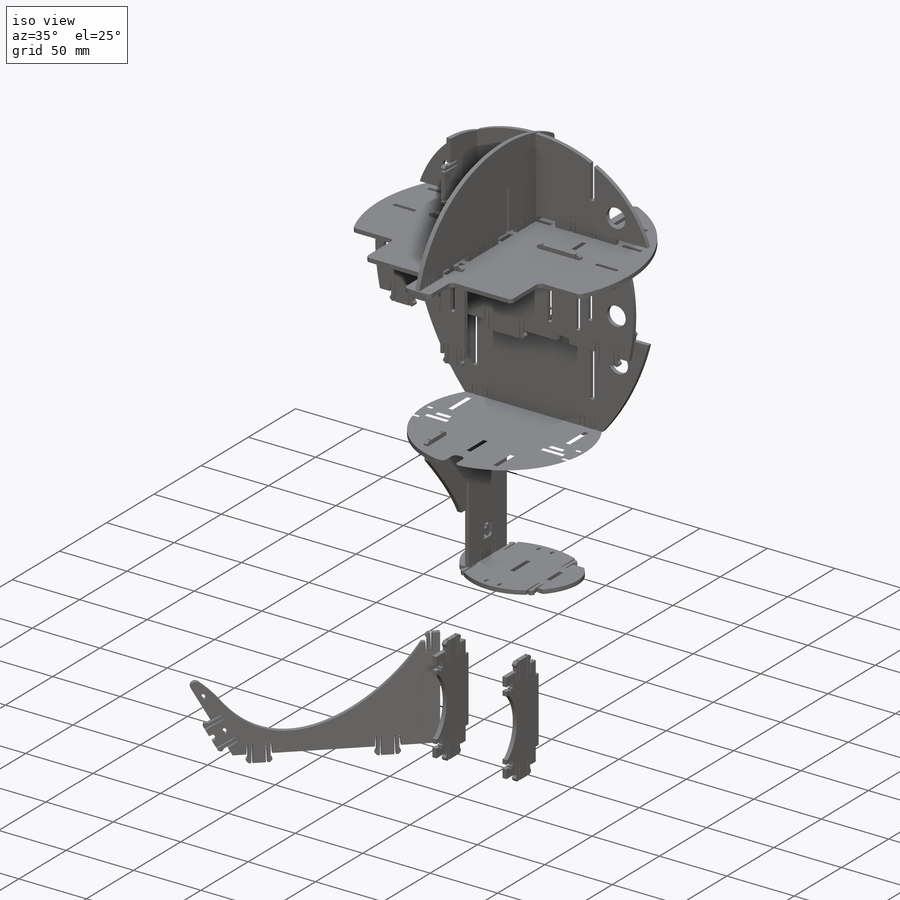
[diagram: iso view]
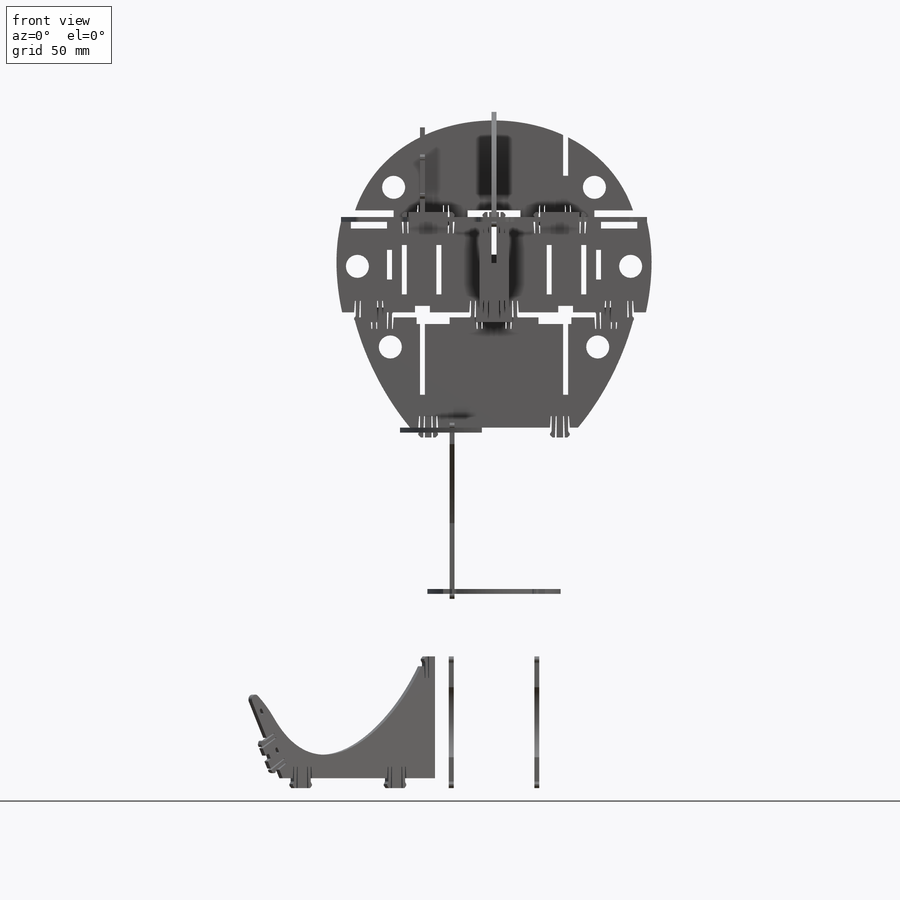
[diagram: front view]
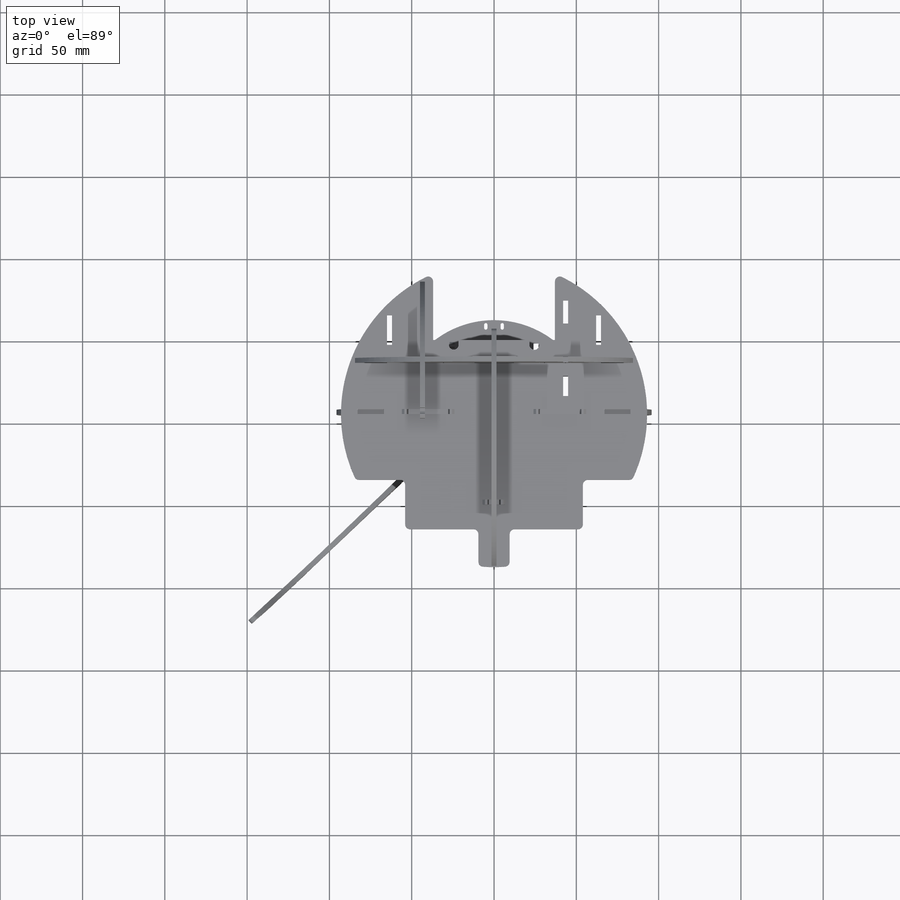
[diagram: top view]
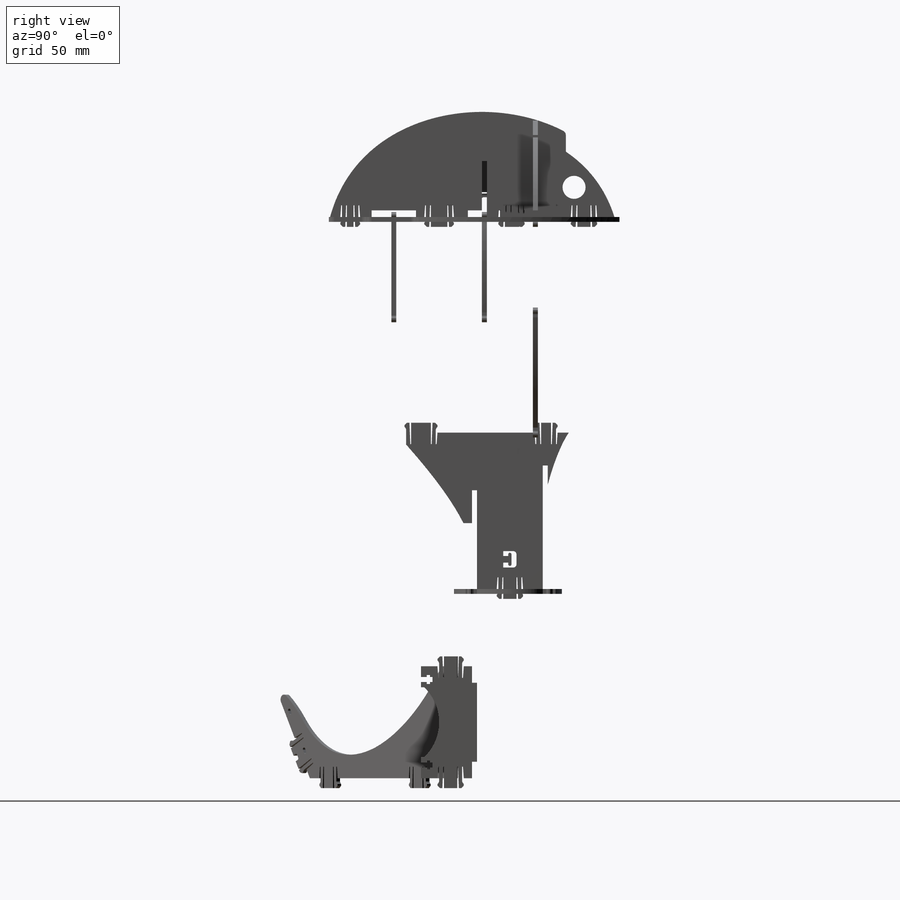
[diagram: right view]
SOLIDWORKS PART (.sldprt)
format: sldprt  version: not decoded by parser v0  size: 11,073,536 bytes
history: native  units: mm
features: sketch x41, extrude x28, plane x26, mirror x20, cut_extrude x13, fillet x12, material x1, move_body x1 (+12 scaffold rows collapsed)
feature tree (154):
  scaffold x12  (default folders/planes/origin — collapsed)
  material  "Material <not specified>"
  move_body  "Body-Move/Copy1"
  plane  "Plane1"  Offset=20mm
  sketch  "Sketch1"  dims[c1.D1=13.0mm c1.D2=0.5mm c1.D3=1.0mm c1.D4=0.5mm c1.D5=1.0mm c1.D6=2.5mm c1.D7=1.5mm c1.D8=1.5mm c1.D9=1.5mm c1.D10=1.0mm c1.D11=0.5mm c1.D12=1.0mm c1.D13=7.0mm c2.D1=3.0mm c2.D2=3.0mm c2.D3=3.0mm c2.D4=14.0mm c2.D5=14.0mm c2.D6=65.0mm c2.D7=30.0mm c2.D8=3.0mm c2.D9=14.0mm c2.D10=7.0mm c2.D11=37.0mm c2.D12=3.0mm c2.D13=45.0mm c2.D14=14.0mm c2.D15=7.0mm c2.D16=25.0mm c2.D17=3.0mm c3.D15=30.0mm c3.D13=40.0mm c3.D16=26.0mm c3.D18=3.0mm c3.D19=14.0mm c3.D20=6.0mm c3.D21=51.0mm c3.D22=12.0mm c3.D23=12.0mm c3.D24=31.0mm c3.D25=4.0mm c4.D15=51.0mm c4.D21=30.0mm c4.D24=27.0mm c4.D25=10.0mm c5.D15=38.0mm c5.D21=51.0mm c5.D25=20.0mm]
  extrude  "Boss-Extrude1"  Depth=3mm
  mirror  "Mirror1"
  sketch  "Sketch49"  dims[D1=10.0mm D2=10.0mm D3=10.0mm D4=32.0mm]
  cut_extrude  "Cut-Extrude12"  [1 undecoded]
  plane  "Plane2"  Offset=0mm
  plane  "Plane4"
  sketch  "Sketch2"  dims[c1.D1=8.0mm c1.D2=13.0mm c1.D3=0.5mm c1.D4=1.0mm c1.D5=0.5mm c1.D6=1.0mm c1.D7=2.5mm c1.D8=1.5mm c1.D9=1.5mm c1.D10=1.5mm c1.D11=1.0mm c1.D12=0.5mm c1.D13=1.0mm c1.D14=7.0mm c2.D1=13.0mm c2.D2=0.5mm c2.D3=1.0mm c2.D4=1.5mm c2.D5=1.5mm c2.D6=0.5mm c2.D7=1.0mm c2.D8=7.0mm c2.D9=1.0mm c2.D10=0.5mm c2.D11=1.0mm c2.D12=1.5mm c2.D13=2.5mm c3.D4=3.0mm c3.D10=1.0mm c3.D1=3.0mm c3.D2=6.0mm c3.D3=20.0mm c3.D5=25.0mm c3.D6=90.0mm c3.D7=1.0mm c4.D6=68.0mm c4.D8=8.0mm c5.D6=68.0mm c5.D1=3.0mm c5.D9=2.0mm c5.D10=4.0mm c5.D11=4.0mm c5.D12=26.0mm]
  extrude  "Boss-Extrude2"  Depth=3mm
  sketch  "Sketch46"  dims[D2=1.0mm D1=3.0mm]
  cut_extrude  "Cut-Extrude9"  Depth=3mm
  mirror  "Mirror2"
  plane  "Plane5"  Offset=0mm
  sketch  "Sketch4"  dims[c1.D2=1.0mm c1.D1=2.0mm c2.D2=4.0mm c2.D3=2.0mm]
  extrude  "Boss-Extrude3"  Depth=3mm
  plane  "Plane6"  Offset=112mm
  sketch  "Sketch5"  dims[c1.D9=1.0mm c1.D1=25.0mm c1.D2=24.0mm c1.D3=1.5mm c1.D4=8.0mm c1.D5=18.0mm c1.D6=3.0mm c1.D7=14.0mm c1.D8=24.0mm c2.D9=14.0mm c2.D1=1.5mm c2.D2=20.0mm c2.D3=24.0mm c2.D10=26.0mm c3.D2=2.0mm c3.D9=4.0mm c3.D11=4.0mm c3.D12=5.5mm c3.D13=7.0mm]
  extrude  "Boss-Extrude4"  Depth=3mm
  mirror  "Mirror3"
  plane  "Plane7"  Offset=0mm
  sketch  "Sketch6"  dims[c1.D16=1.0mm c1.D1=1.0mm c1.D2=95.0mm c1.D3=10.0mm c1.D4=48.0mm c1.D5=10.0mm c1.D6=48.0mm c1.D7=68.0mm c1.D8=3.0mm c1.D9=15.0mm c2.D5=10.0mm c2.D2=95.0mm c2.D10=1.5mm c2.D11=50.0mm c2.D12=60.0mm c2.D13=10.0mm c2.D14=10.0mm c2.D15=2.0mm c2.D16=4.0mm c2.D17=27.0mm c2.D18=2.0mm c2.D19=~11.179693mm]
  extrude  "Boss-Extrude5"  Depth=3mm
  mirror  "Mirror4"
  plane  "Plane8"  Offset=0mm
  sketch  "Sketch7"  dims[c1.D8=2.5mm c1.D16=4.5mm c1.D1=3.0mm c1.D2=25.0mm c1.D3=1.0mm c1.D4=1.0mm c1.D5=3.0mm c1.D6=20.0mm c1.D7=50.0mm c1.D9=48.0mm c1.D10=25.25mm c1.D11=5.0mm c2.D4=1.5mm c2.D12=60.0mm c2.D13=10.0mm c2.D14=9.0mm c2.D15=20.0mm c2.D11=68.0mm c2.D2=25.0mm]
  extrude  "Boss-Extrude6"  Depth=3mm
  mirror  "Mirror5"
  plane  "Plane9"  Offset=0mm
  sketch  "Sketch8"  dims[c1.D11=~48.32703mm c1.D1=10.0mm c1.D2=2.0mm c1.D3=3.0mm c1.D4=5.5mm c1.D5=7.0mm c1.D6=5.5mm c1.D7=52.0mm c1.D8=6.0mm c1.D9=6.0mm c2.D8=68.0mm c2.D9=42.5mm c2.D10=2.0mm c2.D11=11.0mm]
  extrude  "Boss-Extrude7"  Depth=3mm
  plane  "Plane10"  Offset=0mm
  sketch  "Sketch9"  dims[D1=1.0mm D2=1.0mm D3=4.0mm D4=4.0mm D5=4.0mm D6=65.0mm]
  extrude  "Boss-Extrude8"  Depth=3mm
  mirror  "Mirror6"
  plane  "Plane11"  Offset=0mm
  sketch  "Sketch10"  dims[D1=1.0mm]
  extrude  "Boss-Extrude9"  Depth=3mm
  mirror  "Mirror7"
  sketch  "Sketch11"  dims[D2=10.0mm D1=18.0mm]
  cut_extrude  "Cut-Extrude1"  Depth=3mm
  sketch  "Sketch12"  dims[c1.D2=3.0mm c1.D1=3.0mm c2.D2=8.0mm c2.D3=84.5mm c2.D4=55.0mm c2.D5=3.5mm c2.D1=107.5mm]
  cut_extrude  "Cut-Extrude2"  Depth=3mm
  plane  "Plane12"  Offset=3mm
  sketch  "Sketch15"  dims[c1.D11=3.0mm c1.D12=6.0mm c1.D3=5.5mm c1.D8=3.0mm c1.D1=3.0mm c1.D2=~2.999738mm c2.D2=40.0deg c2.D3=30.0mm c2.D4=35.0mm c2.D5=20.0mm c2.D6=10.0mm c2.D7=36.75mm c2.D8=~3.937962mm c3.D8=45.0deg c3.D9=27.0mm c3.D10=4.0mm c3.D5=4.0mm c3.D3=65.25mm c3.D6=10.0mm c3.D4=20.75mm c4.D6=2.0mm c4.D7=24.75mm c4.D5=29.75mm c5.D7=24.0mm c5.D8=~18.211583mm]
  extrude  "Boss-Extrude11"  Depth=3mm
  mirror  "Mirror9"
  plane  "Plane13"  Offset=0mm
  sketch  "Sketch17"  dims[c1.D18=12.0mm c1.D21=1.0mm c1.D1=1.5mm c1.D2=8.0mm c1.D3=18.0mm c1.D4=4.0mm c1.D5=14.0mm c2.D4=4.0mm c2.D6=12.0mm c2.D7=~17.627209mm c3.D7=~43.490391deg c4.D7=18.0mm c4.D8=22.0mm c4.D9=5.0mm c4.D10=2.5mm c4.D11=16.0mm c4.D12=8.0mm c4.D13=3.0mm c4.D14=10.0mm c4.D15=8.0mm c4.D16=20.0mm c4.D17=12.0mm c4.D18=14.0mm c4.D19=8.0mm c4.D20=42.0mm c5.D17=3.0mm c5.D21=12.0mm c5.D22=9.0mm c5.D18=2.0mm c6.D21=4.0mm c6.D22=4.0mm c6.D23=14.5mm]
  extrude  "Boss-Extrude12"  Depth=3mm
  sketch  "Sketch48"  dims[c1.D6=1.0mm c1.D7=1.0mm c1.D1=2.0mm c1.D2=2.0mm c1.D3=2.0mm c1.D4=2.0mm c1.D5=27.0mm c2.D6=4.0mm c2.D7=6.0mm]
  cut_extrude  "Cut-Extrude11"  [1 undecoded]
  mirror  "Mirror10"
  plane  "Plane14"
  sketch  "Sketch18"  dims[c1.D2=1.0mm c1.D1=22.0mm c2.D2=12.0mm c2.D3=18.0mm c2.D4=44.0mm c2.D1=2.0mm c3.D2=4.0mm c3.D3=2.5mm c3.D4=3.0mm c3.D5=4.0mm c3.D6=3.0mm c3.D7=15.0mm c4.D6=3.0mm]
  extrude  "Boss-Extrude13"  Depth=3mm
  plane  "Plane15"  Offset=0mm
  sketch  "Sketch19"  dims[D1=20.0mm]
  extrude  "Boss-Extrude14"  Depth=3mm
  mirror  "Mirror11"
  sketch  "Sketch50"  dims[c1.D1=~11.648172mm c2.D1=30.0deg c2.D2=12.0mm]
  cut_extrude  "Cut-Extrude13"  Depth=8mm
  plane  "Plane16"  Offset=67mm
  sketch  "Sketch20"  dims[c1.D33=14.0mm c1.D1=1.5mm c1.D2=20.0mm c1.D3=20.0mm c1.D4=60.0mm c1.D5=~60.017798mm c2.D4=~93.085452mm c2.D5=60.0mm c3.D4=45.0mm c3.D1=37.0mm c3.D2=1.5mm c3.D6=10.0mm c3.D7=12.0mm c3.D8=52.0mm c3.D9=14.0mm c3.D10=20.0mm c3.D11=14.0mm c3.D12=65.0mm c3.D13=9.0mm c3.D14=14.0mm c3.D15=25.0mm c3.D16=40.0mm c3.D17=18.0mm c3.D18=16.0mm c3.D19=18.0mm c3.D20=3.0mm c3.D21=8.5mm c3.D22=16.0mm c3.D23=14.0mm c3.D24=54.0mm c3.D25=3.0mm c3.D26=6.0mm c3.D27=52.0mm c3.D28=3.0mm c3.D29=14.0mm c3.D30=8.0mm c3.D31=6.0mm c3.D32=10.0mm c3.D34=12.0mm c3.D35=12.0mm]
  extrude  "Boss-Extrude15"  Depth=3mm
  plane  "Plane17"  Offset=55mm
  sketch  "Sketch21"  dims[D1=12.0mm D2=14.0mm D3=18.0mm D4=28.0mm D5=65.0mm D6=30.0mm D7=25.0mm D8=1.5mm D9=4.5mm D10=4.5mm D11=1.5mm D12=8.0mm D13=8.0mm D14=8.0mm D15=18.0mm D16=12.0mm D17=16.0mm D18=14.0mm D19=10.0mm D20=12.0mm D21=8.0mm D22=10.0mm D23=75.0mm D24=16.0mm D25=18.0mm D26=10.0mm D27=6.0mm]
  extrude  "Boss-Extrude16"  Depth=3mm
  mirror  "Mirror12"
  plane  "Plane18"  Offset=0mm
  sketch  "Sketch23"  dims[c1.D5=14.0mm c1.D1=20.0mm c1.D2=4.0mm c1.D3=3.0mm c1.D4=3.0mm c1.D6=18.0mm c1.D7=~18.205798mm c2.D6=18.0mm c2.D7=18.0mm]
  extrude  "Boss-Extrude17"  Depth=3mm
  mirror  "Mirror13"
  plane  "Plane19"  Offset=0mm
  sketch  "Sketch25"  dims[c1.D7=14.0mm c1.D10=1.0mm c1.D1=20.0mm c1.D2=3.0mm c1.D3=~21.986577mm c1.D4=29.0mm c1.D5=30.0mm c2.D3=50.0mm c2.D6=20.0mm c2.D8=18.0mm c2.D9=22.0mm c2.D10=4.0mm c2.D11=2.0mm c2.D12=2.0mm c2.D13=3.0mm c3.D10=4.0mm c3.D13=27.0mm]
  extrude  "Boss-Extrude18"  Depth=3mm
  mirror  "Mirror14"
  plane  "Plane20"  Offset=0mm
  sketch  "Sketch26"  dims[c1.D1=2.0mm c1.D2=10.0mm c1.D3=2.0mm c1.D4=4.0mm c1.D5=1.0mm c1.D6=8.0mm c1.D7=3.0mm c2.D6=14.0mm c2.D10=1.0mm c2.D1=4.0mm c2.D2=3.0mm c2.D3=3.0mm c2.D4=1.0mm c2.D5=1.0mm c3.D6=12.0mm c3.D7=18.0mm c3.D8=26.0mm c3.D9=2.0mm c3.D10=4.0mm c3.D11=8.0mm c3.D12=18.0mm c3.D13=20.0mm c3.D14=20.0mm c4.D9=13.0mm]
  extrude  "Boss-Extrude19"  Depth=3mm
  mirror  "Mirror15"
  plane  "Plane21"  Offset=0mm
  sketch  "Sketch27"  dims[c1.D15=2.5mm c1.D19=14.0mm c1.D1=4.0mm c1.D2=3.0mm c1.D3=3.0mm c1.D4=3.0mm c1.D5=4.0mm c1.D6=3.0mm c1.D7=3.0mm c1.D8=1.5mm c1.D9=25.0mm c1.D10=5.0mm c1.D11=4.0mm c1.D12=3.0mm c1.D13=~1.615168mm c2.D12=3.0mm c2.D13=3.0mm c2.D14=20.0mm c2.D16=1.5mm c2.D17=15.0mm c2.D18=15.0mm c2.D20=28.0mm c2.D21=12.0mm]
  extrude  "Boss-Extrude20"  Depth=3mm
  mirror  "Mirror16"
  plane  "Plane22"  Offset=0mm
  sketch  "Sketch28"  dims[D15=14.0mm D1=1.5mm D2=20.0mm D3=3.0mm D4=30.0mm D5=18.0mm D6=11.0mm D7=32.0mm D8=4.0mm D9=3.0mm D10=3.0mm D11=18.0mm D12=20.0mm D13=4.0mm D14=4.0mm D16=28.0mm D17=18.0mm]
  extrude  "Boss-Extrude21"  Depth=3mm
  mirror  "Mirror17"
  plane  "Plane23"  Offset=0mm
  sketch  "Sketch29"  dims[D1=2.0mm D2=2.0mm D3=3.0mm D4=25.0mm]
  extrude  "Boss-Extrude22"  Depth=3mm
  sketch  "Sketch30"  dims[D1=4.0mm D2=3.0mm D3=3.0mm D4=4.0mm D5=4.0mm D6=4.0mm D7=4.0mm D8=4.0mm D9=4.0mm D10=4.0mm D11=4.0mm]
  extrude  "Boss-Extrude23"  Depth=3mm
  plane  "Plane24"  Offset=0mm
  sketch  "Sketch32"  dims[c1.D5=14.0mm c1.D8=1.0mm c1.D1=4.0mm c1.D2=3.0mm c1.D3=3.0mm c1.D4=28.0mm c1.D6=20.0mm c1.D7=2.0mm c2.D8=4.0mm c2.D9=28.0mm c2.D10=8.0mm c2.D11=14.0mm c2.D7=14.0mm]
  extrude  "Boss-Extrude24"  Depth=3mm
  mirror  "Mirror18"
  sketch  "Sketch33"  dims[c1.D14=14.0mm c1.D1=4.0mm c1.D2=3.0mm c1.D3=3.0mm c2.D1=4.0mm c2.D4=3.0mm c2.D5=3.0mm c2.D6=30.0mm c2.D7=18.0mm c2.D8=9.0mm c2.D9=30.0mm c2.D10=25.0mm c2.D11=12.0mm c2.D12=1.5mm c2.D13=30.0mm c2.D15=16.0mm c2.D16=18.0mm]
  extrude  "Boss-Extrude25"  Depth=3mm
  mirror  "Mirror19"
  plane  "Plane25"  Offset=0mm
  sketch  "Sketch35"  dims[D8=14.0mm D1=4.0mm D2=3.0mm D3=4.0mm D4=3.0mm D5=1.5mm D6=25.0mm D7=25.0mm D9=18.0mm D10=16.0mm]
  extrude  "Boss-Extrude26"  Depth=3mm
  mirror  "Mirror20"
  plane  "Plane26"  Offset=0mm
  sketch  "Sketch36"  dims[c1.D1=14.0mm c1.D4=~3.456108mm c1.D2=18.0mm c1.D3=22.0mm c2.D4=4.0mm c2.D5=2.0mm c2.D6=8.0mm c2.D7=18.0mm c2.D8=14.0mm c3.D4=12.0mm]
  extrude  "Boss-Extrude27"  Depth=3mm
  mirror  "Mirror21"
  sketch  "Sketch37"  dims[D1=25.0mm D2=3.0mm D3=4.0mm D4=3.0mm D5=4.0mm D6=3.0mm D7=3.0mm D8=6.0mm]
  extrude  "Boss-Extrude28"  Depth=3mm
  sketch  "Sketch38"  dims[D1=70.0mm D2=8.0mm D3=30.0mm D4=100.0mm D5=108.0mm D6=100.0mm D7=20.0mm]
  cut_extrude  "Cut-Extrude3"  Depth=3mm
  sketch  "Sketch39"  dims[D1=40.0mm D2=40.0mm]
  cut_extrude  "Cut-Extrude4"  Depth=3mm
  fillet  "Fillet1"  Radius=3mm
  fillet  "Fillet2"  Radius=3mm
  fillet  "Fillet3"  Radius=3mm
  sketch  "Sketch40"  dims[D1=7.0mm D2=8.0mm D3=13.0mm D4=19.3mm D5=12.0mm D6=12.0mm D7=26.0mm]
  cut_extrude  "Cut-Extrude5"  [1 undecoded]
  sketch  "Sketch41"  dims[c1.D1=4.0mm c1.D2=2.0mm c1.D3=8.0mm c1.D4=18.0mm c1.D5=10.0mm c2.D1=24.0mm c2.D2=11.0mm]
  cut_extrude  "Cut-Extrude6"  [1 undecoded]
  sketch  "Sketch42"  dims[c1.D2=1.0mm c1.D14=4.5mm c1.D3=1.0mm c1.D1=2.0mm c2.D2=4.0mm c2.D3=4.0mm c2.D4=120.0mm c2.D5=8.0mm c2.D6=2.0mm c2.D7=40.0mm c2.D8=8.0mm c2.D9=6.0mm c2.D10=35.0mm c2.D11=6.0mm c2.D12=80.0mm c2.D13=52.0mm c3.D11=30.0mm c3.D2=2.0mm c3.D3=4.0mm c3.D4=65.0mm c3.D15=46.0mm c4.D2=2.0mm c4.D3=35.0mm c4.D5=8.0mm]
  cut_extrude  "Cut-Extrude7"  Depth=3mm
  sketch  "Sketch43"  dims[c1.D1=~4.12424mm c1.D2=~1.372932mm c2.D1=8.0mm c2.D2=4.0mm c2.D3=2.0mm c2.D4=18.0mm]
  cut_extrude  "Cut-Extrude8"  [1 undecoded]
  fillet  "Fillet5"  Radius=3mm
  fillet  "Fillet13"  Radius=3mm
  plane  "Plane27"  Offset=0mm
  sketch  "Sketch45"  dims[c1.D3=3.0mm c1.D4=8.0mm c1.D5=~1.738907mm c1.D11=2.0mm c1.D8=2.5mm c1.D1=1.5mm c1.D2=6.0mm c2.D5=4.0mm c2.D6=2.0mm c2.D7=8.0mm c2.D8=6.0mm c2.D9=6.0mm c2.D10=15.0mm c2.D12=55.2mm c2.D13=25.4mm c2.D14=4.9mm c2.D15=~7.622393mm c3.D15=90.0deg c4.D15=12.6mm c4.D16=18.0mm c4.D17=25.5mm c4.D18=20.0mm c4.D5=49.0mm c4.D6=58.0mm c4.D7=26.0mm]
  extrude  "Boss-Extrude29"  Depth=3mm
  sketch  "Sketch47"  dims[D1=6.0mm D2=6.0mm D3=6.0mm D4=6.0mm]
  cut_extrude  "Cut-Extrude10"  [1 undecoded]
  fillet  "Fillet8"  Radius=3mm
  fillet  "Fillet9"  Radius=3mm
  fillet  "Fillet10"  Radius=3mm
  fillet  "Fillet11"  Radius=3mm
  fillet  "Fillet12"  Radius=3mm
  fillet  "Fillet14"  Radius=3mm
  fillet  "Fillet15"  Radius=3mm
decode coverage: 88 of 115 modeling features carry decoded parameters
note: ~ marks probable driven/reference dimensions
note: 6 parameter values undecoded
summary: no parameter record found for 6 features
note: suppression state not decoded; provenance and decode notes live in map.json
